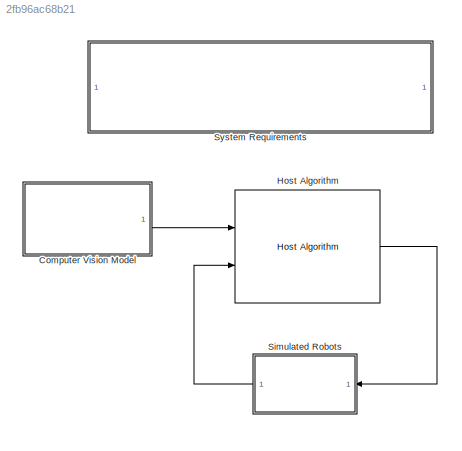
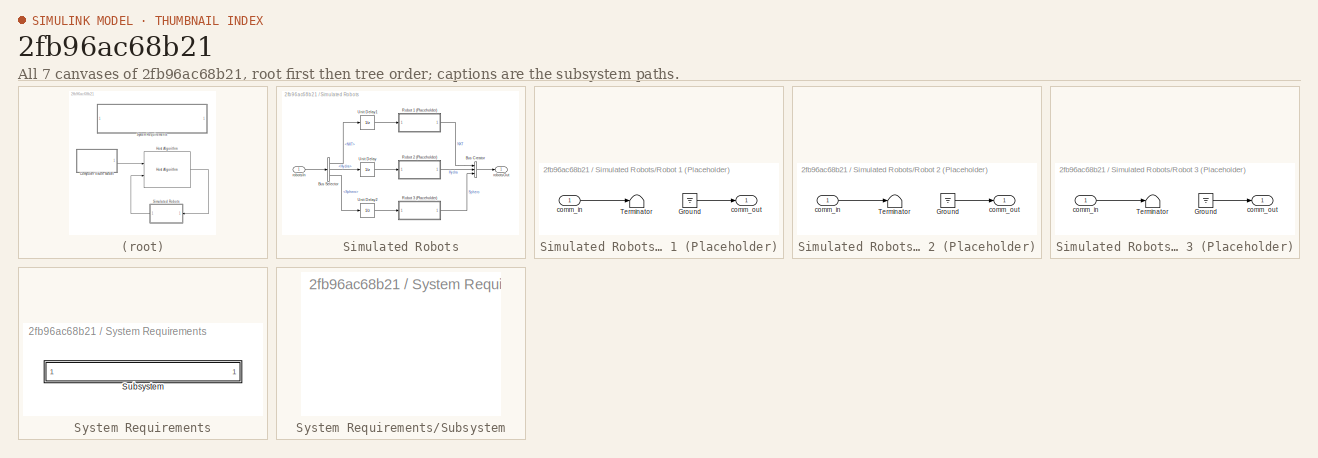
[diagram: thumbnail index - all 7 canvases of the model, root first then tree order]
MODEL slx_2fb96ac68b21
KIND model
BLOCK [ModelReference] Computer Vision Model
  CopyOfModelName = processCamera
  DefaultDataLogging = on
  ModelNameDialog = processCamera
  ModelReferenceVersion = 1.5
  Ports = [0, 1]
BLOCK [Reference] Host Algorithm  REF=hostLogic/Host Algorithm
  Ports = [2, 1]
  SourceBlock = hostLogic/Host Algorithm
  SourceType = SubSystem
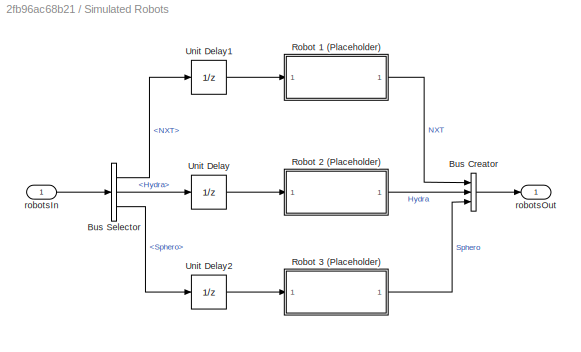
BLOCK [SubSystem] Simulated Robots
  Ports = [1, 1]
  RequestExecContextInheritance = off
BLOCK [BusCreator] Simulated Robots/Bus Creator
  DisplayOption = bar
  Inputs = 3
  OutDataTypeStr = Bus: CommsBus
  Ports = [3, 1]
BLOCK [BusSelector] Simulated Robots/Bus Selector
  OutputSignals = NXT,Hydra,Sphero
  Ports = [1, 3]
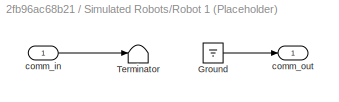
BLOCK [SubSystem] Simulated Robots/Robot 1 (Placeholder)
  Ports = [1, 1]
  RequestExecContextInheritance = off
BLOCK [Ground] Simulated Robots/Robot 1 (Placeholder)/Ground
BLOCK [Terminator] Simulated Robots/Robot 1 (Placeholder)/Terminator
BLOCK [Inport] Simulated Robots/Robot 1 (Placeholder)/comm_in
  IconDisplay = Port number
BLOCK [Outport] Simulated Robots/Robot 1 (Placeholder)/comm_out
  IconDisplay = Port number
BLOCK [SubSystem] Simulated Robots/Robot 2 (Placeholder)
  Ports = [1, 1]
  RequestExecContextInheritance = off
BLOCK [Ground] Simulated Robots/Robot 2 (Placeholder)/Ground
BLOCK [Terminator] Simulated Robots/Robot 2 (Placeholder)/Terminator
BLOCK [Inport] Simulated Robots/Robot 2 (Placeholder)/comm_in
  IconDisplay = Port number
BLOCK [Outport] Simulated Robots/Robot 2 (Placeholder)/comm_out
  IconDisplay = Port number
BLOCK [SubSystem] Simulated Robots/Robot 3 (Placeholder)
  Ports = [1, 1]
  RequestExecContextInheritance = off
BLOCK [Ground] Simulated Robots/Robot 3 (Placeholder)/Ground
BLOCK [Terminator] Simulated Robots/Robot 3 (Placeholder)/Terminator
BLOCK [Inport] Simulated Robots/Robot 3 (Placeholder)/comm_in
  IconDisplay = Port number
BLOCK [Outport] Simulated Robots/Robot 3 (Placeholder)/comm_out
  IconDisplay = Port number
BLOCK [UnitDelay] Simulated Robots/Unit Delay
  InputProcessing = Elements as channels (sample based)
  SampleTime = -1
BLOCK [UnitDelay] Simulated Robots/Unit Delay1
  InputProcessing = Elements as channels (sample based)
  SampleTime = -1
BLOCK [UnitDelay] Simulated Robots/Unit Delay2
  InputProcessing = Elements as channels (sample based)
  SampleTime = -1
BLOCK [Inport] Simulated Robots/robotsIn
  IconDisplay = Port number
  OutDataTypeStr = Bus: CommsBus
BLOCK [Outport] Simulated Robots/robotsOut
  IconDisplay = Port number
  OutDataTypeStr = Bus: CommsBus
BLOCK [SubSystem] System Requirements
  CopyFcn = rmidispblock('create',gcbh)
  DeleteFcn = rmidispblock('delete',gcbh)
  LoadFcn = rmidispblock('load',gcbh)
  ModelCloseFcn = rmidispblock('close',gcbh)
  MoveFcn = rmidispblock('move',gcbh)
  OpenFcn = rmidispblock('open',gcbh)
  Ports = []
  PostSaveFcn = rmidispblock('open',gcbh)
  PreSaveFcn = rmidispblock('close',gcbh)
  RequestExecContextInheritance = off
BLOCK [SubSystem] System Requirements/Subsystem
  OpenFcn = rmidispblock('openReq',gcbh);
  Ports = []
  RequestExecContextInheritance = off
LINE Computer Vision Model:1 -> Host Algorithm:1
LINE Host Algorithm:1 -> Simulated Robots:1
LINE Simulated Robots/Bus Creator:1 -> Simulated Robots/robotsOut:1
LINE Simulated Robots/Bus Selector:1 -> Simulated Robots/Unit Delay1:1
LINE Simulated Robots/Bus Selector:2 -> Simulated Robots/Unit Delay:1
LINE Simulated Robots/Bus Selector:3 -> Simulated Robots/Unit Delay2:1
LINE Simulated Robots/Robot 1 (Placeholder)/Ground:1 -> Simulated Robots/Robot 1 (Placeholder)/comm_out:1
LINE Simulated Robots/Robot 1 (Placeholder)/comm_in:1 -> Simulated Robots/Robot 1 (Placeholder)/Terminator:1
LINE Simulated Robots/Robot 1 (Placeholder):1 -> Simulated Robots/Bus Creator:1
LINE Simulated Robots/Robot 2 (Placeholder)/Ground:1 -> Simulated Robots/Robot 2 (Placeholder)/comm_out:1
LINE Simulated Robots/Robot 2 (Placeholder)/comm_in:1 -> Simulated Robots/Robot 2 (Placeholder)/Terminator:1
LINE Simulated Robots/Robot 2 (Placeholder):1 -> Simulated Robots/Bus Creator:2
LINE Simulated Robots/Robot 3 (Placeholder)/Ground:1 -> Simulated Robots/Robot 3 (Placeholder)/comm_out:1
LINE Simulated Robots/Robot 3 (Placeholder)/comm_in:1 -> Simulated Robots/Robot 3 (Placeholder)/Terminator:1
LINE Simulated Robots/Robot 3 (Placeholder):1 -> Simulated Robots/Bus Creator:3
LINE Simulated Robots/Unit Delay1:1 -> Simulated Robots/Robot 1 (Placeholder):1
LINE Simulated Robots/Unit Delay2:1 -> Simulated Robots/Robot 3 (Placeholder):1
LINE Simulated Robots/Unit Delay:1 -> Simulated Robots/Robot 2 (Placeholder):1
LINE Simulated Robots/robotsIn:1 -> Simulated Robots/Bus Selector:1
LINE Simulated Robots:1 -> Host Algorithm:2
